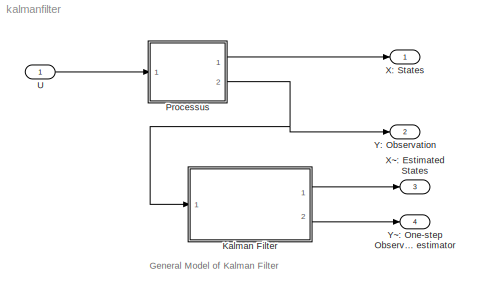
MODEL kalmanfilter
KIND model
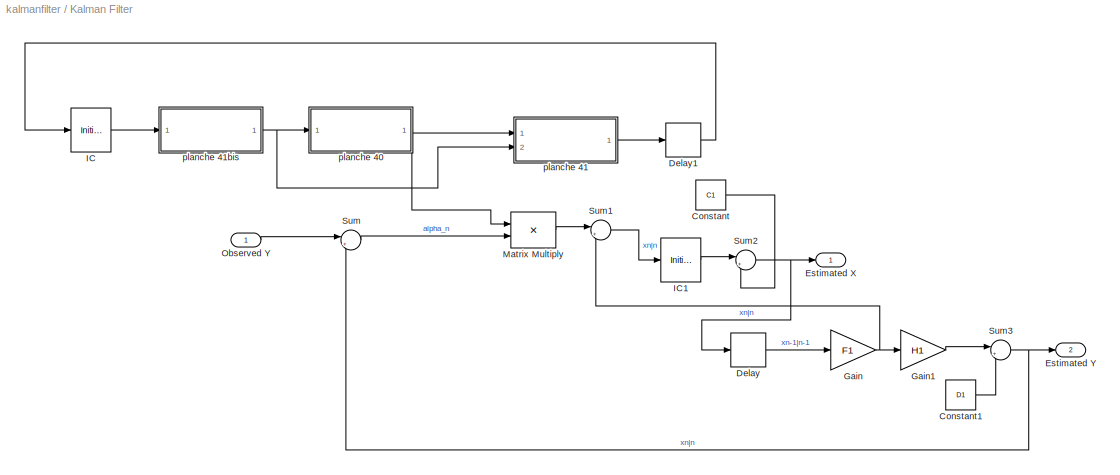
BLOCK [SubSystem] Kalman Filter
  Ports = [1, 2]
  RequestExecContextInheritance = off
  SID = 2
BLOCK [Constant] Kalman Filter/Constant
  SID = 187
  Value = C1
BLOCK [Constant] Kalman Filter/Constant1
  SID = 190
  Value = D1
BLOCK [Delay] Kalman Filter/Delay
  DelayLength = 1
  InitialCondition = 0
  InputPortMap = u0
  Ports = [1, 1]
  SID = 85
BLOCK [Delay] Kalman Filter/Delay1
  DelayLength = 1
  InitialCondition = 0
  InputPortMap = u0
  Ports = [1, 1]
  SID = 159
BLOCK [Outport] Kalman Filter/Estimated X
  SID = 28
BLOCK [Outport] Kalman Filter/Estimated Y
  Port = 2
  SID = 29
BLOCK [Gain] Kalman Filter/Gain
  Gain = F1
  Multiplication = Matrix(K*u)
  SID = 89
BLOCK [Gain] Kalman Filter/Gain1
  Gain = H1
  Multiplication = Matrix(K*u)
  SID = 157
BLOCK [InitialCondition] Kalman Filter/IC
  SID = 160
  Value = P1
BLOCK [InitialCondition] Kalman Filter/IC1
  SID = 170
  Value = x1
BLOCK [Product] Kalman Filter/Matrix Multiply
  Multiplication = Matrix(*)
  Ports = [2, 1]
  SID = 127
BLOCK [Inport] Kalman Filter/Observed Y
  PortDimensions = size(H,1)
  SID = 3
BLOCK [Sum] Kalman Filter/Sum
  Inputs = |+-
  Ports = [2, 1]
  SID = 83
BLOCK [Sum] Kalman Filter/Sum1
  Inputs = |++
  Ports = [2, 1]
  SID = 158
BLOCK [Sum] Kalman Filter/Sum2
  Inputs = |++
  Ports = [2, 1]
  SID = 188
BLOCK [Sum] Kalman Filter/Sum3
  Inputs = |++
  Ports = [2, 1]
  SID = 189
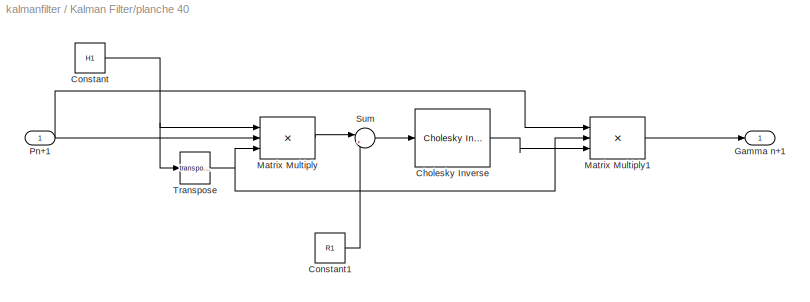
BLOCK [SubSystem] Kalman Filter/planche 40
  Ports = [1, 1]
  RequestExecContextInheritance = off
  SID = 90
BLOCK [Reference] Kalman Filter/planche 40/Cholesky Inverse  REF=dspinverses/Cholesky Inverse
  Ports = [1, 1]
  RTWMemSecDataConstants = Inherit from model
  RTWMemSecDataInternal = Inherit from model
  RTWMemSecDataParameters = Inherit from model
  RTWMemSecFuncExecute = Inherit from model
  RTWMemSecFuncInitTerm = Inherit from model
  SID = 181
  SourceBlock = dspinverses/Cholesky Inverse
  SourceProductBaseCode = DS
  SourceType = Cholesky Inverse
  errmode = Warning
BLOCK [Constant] Kalman Filter/planche 40/Constant
  SID = 97
  Value = H1
BLOCK [Constant] Kalman Filter/planche 40/Constant1
  SID = 98
  Value = R1
BLOCK [Outport] Kalman Filter/planche 40/Gamma n+1
  SID = 92
BLOCK [Product] Kalman Filter/planche 40/Matrix Multiply
  Inputs = 3
  Multiplication = Matrix(*)
  Ports = [3, 1]
  SID = 100
BLOCK [Product] Kalman Filter/planche 40/Matrix Multiply1
  Inputs = 3
  Multiplication = Matrix(*)
  Ports = [3, 1]
  SID = 102
BLOCK [Inport] Kalman Filter/planche 40/Pn+1
  SID = 91
BLOCK [Sum] Kalman Filter/planche 40/Sum
  Inputs = |++
  Ports = [2, 1]
  SID = 101
BLOCK [Math] Kalman Filter/planche 40/Transpose
  Operator = transpose
  Ports = [1, 1]
  SID = 99
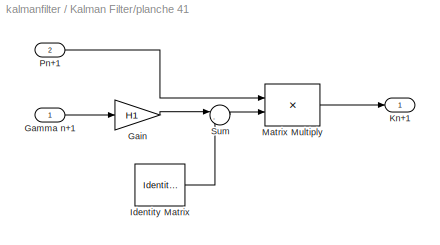
BLOCK [SubSystem] Kalman Filter/planche 41
  Ports = [2, 1]
  RequestExecContextInheritance = off
  SID = 103
BLOCK [Gain] Kalman Filter/planche 41/Gain
  Gain = H1
  Multiplication = Matrix(u*K)
  SID = 107
BLOCK [Inport] Kalman Filter/planche 41/Gamma n+1
  SID = 104
BLOCK [Reference] Kalman Filter/planche 41/Identity Matrix  REF=dspmtrx3/Identity Matrix
  Inherit = off
  LastOutDataTypeStr = double
  MultithreadedSim = auto
  N = 4
  OutDataTypeStr = double
  Ports = [0, 1]
  SID = 109
  SourceBlock = dspmtrx3/Identity Matrix
  SourceProductBaseCode = DS
  SourceType = Identity Matrix
  Ts = 1
  additionalParams = off
  allowOverrides = on
  dataType = double
  fracBitsMode = Best precision
  isSigned = on
  numFracBits = 15
  udDataType = sfix(16)
  wordLen = 16
BLOCK [Outport] Kalman Filter/planche 41/Kn+1
  SID = 105
BLOCK [Product] Kalman Filter/planche 41/Matrix Multiply
  Multiplication = Matrix(*)
  Ports = [2, 1]
  SID = 110
BLOCK [Inport] Kalman Filter/planche 41/Pn+1
  Port = 2
  SID = 106
BLOCK [Sum] Kalman Filter/planche 41/Sum
  Inputs = |-+
  Ports = [2, 1]
  SID = 108
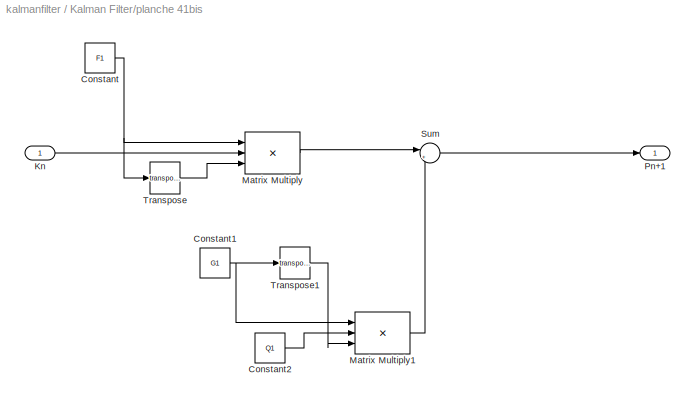
BLOCK [SubSystem] Kalman Filter/planche 41bis
  Ports = [1, 1]
  RequestExecContextInheritance = off
  SID = 111
BLOCK [Constant] Kalman Filter/planche 41bis/Constant
  SID = 114
  Value = F1
BLOCK [Constant] Kalman Filter/planche 41bis/Constant1
  SID = 115
  Value = G1
BLOCK [Constant] Kalman Filter/planche 41bis/Constant2
  SID = 121
  Value = Q1
BLOCK [Inport] Kalman Filter/planche 41bis/Kn
  SID = 112
BLOCK [Product] Kalman Filter/planche 41bis/Matrix Multiply
  Inputs = 3
  Multiplication = Matrix(*)
  Ports = [3, 1]
  SID = 123
BLOCK [Product] Kalman Filter/planche 41bis/Matrix Multiply1
  Inputs = 3
  Multiplication = Matrix(*)
  Ports = [3, 1]
  SID = 124
BLOCK [Outport] Kalman Filter/planche 41bis/Pn+1
  SID = 120
BLOCK [Sum] Kalman Filter/planche 41bis/Sum
  Inputs = |++
  Ports = [2, 1]
  SID = 125
BLOCK [Math] Kalman Filter/planche 41bis/Transpose
  Operator = transpose
  Ports = [1, 1]
  SID = 119
BLOCK [Math] Kalman Filter/planche 41bis/Transpose1
  Operator = transpose
  Ports = [1, 1]
  SID = 122
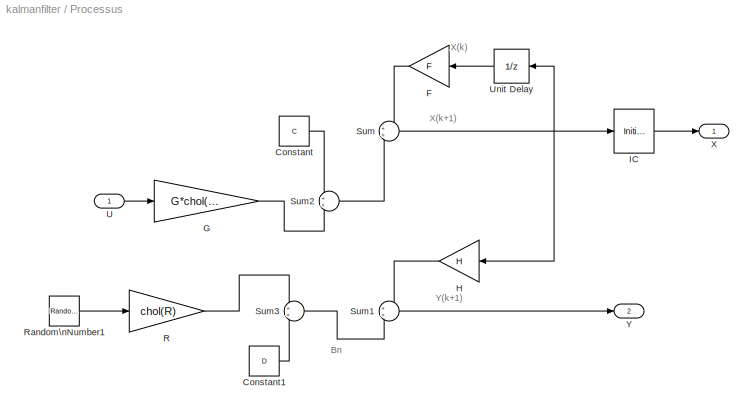
BLOCK [SubSystem] Processus 
  Ports = [1, 2]
  RequestExecContextInheritance = off
  SID = 36
BLOCK [Constant] Processus /Constant
  SID = 184
  Value = C
BLOCK [Constant] Processus /Constant1
  SID = 186
  Value = D
BLOCK [Gain] Processus /F
  Gain = F
  Multiplication = Matrix(K*u)
  SID = 38
BLOCK [Gain] Processus /G
  Gain = G*chol(Q)'
  Multiplication = Matrix(K*u)
  SID = 63
BLOCK [Gain] Processus /H
  Gain = H
  Multiplication = Matrix(K*u)
  SID = 40
BLOCK [InitialCondition] Processus /IC
  SID = 176
  Value = x0
BLOCK [Gain] Processus /R
  Gain = chol(R)
  Multiplication = Matrix(K*u)
  SID = 43
BLOCK [RandomNumber] Processus /Random\nNumber1
  Mean = zeros(size(R,1),1)
  SID = 45
  SampleTime = 1
  Variance = ones(size(R,1),1)
BLOCK [Sum] Processus /Sum
  Ports = [2, 1]
  SID = 46
BLOCK [Sum] Processus /Sum1
  Ports = [2, 1]
  SID = 47
BLOCK [Sum] Processus /Sum2
  Ports = [2, 1]
  SID = 182
BLOCK [Sum] Processus /Sum3
  Ports = [2, 1]
  SID = 185
BLOCK [Inport] Processus /U
  PortDimensions = size(G,2)
  SID = 65
BLOCK [UnitDelay] Processus /Unit Delay
  SID = 48
BLOCK [Outport] Processus /X
  SID = 49
BLOCK [Outport] Processus /Y
  Port = 2
  SID = 50
BLOCK [Inport] U
  PortDimensions = size(G,2)
  SID = 1
BLOCK [Outport] X: States
  SID = 56
BLOCK [Outport] X~: Estimated States
  Port = 3
  SID = 58
BLOCK [Outport] Y: Observation
  Port = 2
  SID = 57
BLOCK [Outport] Y~: One-step Observation estimator
  Port = 4
  SID = 59
ANNOTATION (root): General Model of Kalman Filter
ANNOTATION Processus : Bn
ANNOTATION Processus : X(k)
ANNOTATION Processus : X(k+1)
ANNOTATION Processus : Y(k+1)
LINE Kalman Filter/Constant1:1 -> Kalman Filter/Sum3:2
LINE Kalman Filter/Constant:1 -> Kalman Filter/Sum2:2
LINE Kalman Filter/Delay1:1 -> Kalman Filter/IC:1
LINE Kalman Filter/Delay:1 -> Kalman Filter/Gain:1
LINE Kalman Filter/Gain1:1 -> Kalman Filter/Sum3:1
NET Kalman Filter/Gain:1 -> Kalman Filter/Gain1:1, Kalman Filter/Sum1:2
LINE Kalman Filter/IC1:1 -> Kalman Filter/Sum2:1
LINE Kalman Filter/IC:1 -> Kalman Filter/planche 41bis:1
LINE Kalman Filter/Matrix Multiply:1 -> Kalman Filter/Sum1:1
LINE Kalman Filter/Observed Y:1 -> Kalman Filter/Sum:1
LINE Kalman Filter/Sum1:1 -> Kalman Filter/IC1:1
NET Kalman Filter/Sum2:1 -> Kalman Filter/Delay:1, Kalman Filter/Estimated X:1
NET Kalman Filter/Sum3:1 -> Kalman Filter/Estimated Y:1, Kalman Filter/Sum:2
LINE Kalman Filter/Sum:1 -> Kalman Filter/Matrix Multiply:2
LINE Kalman Filter/planche 40/Cholesky Inverse:1 -> Kalman Filter/planche 40/Matrix Multiply1:3
LINE Kalman Filter/planche 40/Constant1:1 -> Kalman Filter/planche 40/Sum:2
NET Kalman Filter/planche 40/Constant:1 -> Kalman Filter/planche 40/Matrix Multiply:1, Kalman Filter/planche 40/Transpose:1
LINE Kalman Filter/planche 40/Matrix Multiply1:1 -> Kalman Filter/planche 40/Gamma n+1:1
LINE Kalman Filter/planche 40/Matrix Multiply:1 -> Kalman Filter/planche 40/Sum:1
NET Kalman Filter/planche 40/Pn+1:1 -> Kalman Filter/planche 40/Matrix Multiply1:1, Kalman Filter/planche 40/Matrix Multiply:2
LINE Kalman Filter/planche 40/Sum:1 -> Kalman Filter/planche 40/Cholesky Inverse:1
NET Kalman Filter/planche 40/Transpose:1 -> Kalman Filter/planche 40/Matrix Multiply1:2, Kalman Filter/planche 40/Matrix Multiply:3
NET Kalman Filter/planche 40:1 -> Kalman Filter/Matrix Multiply:1, Kalman Filter/planche 41:1
LINE Kalman Filter/planche 41/Gain:1 -> Kalman Filter/planche 41/Sum:1
LINE Kalman Filter/planche 41/Gamma n+1:1 -> Kalman Filter/planche 41/Gain:1
LINE Kalman Filter/planche 41/Identity Matrix:1 -> Kalman Filter/planche 41/Sum:2
LINE Kalman Filter/planche 41/Matrix Multiply:1 -> Kalman Filter/planche 41/Kn+1:1
LINE Kalman Filter/planche 41/Pn+1:1 -> Kalman Filter/planche 41/Matrix Multiply:1
LINE Kalman Filter/planche 41/Sum:1 -> Kalman Filter/planche 41/Matrix Multiply:2
LINE Kalman Filter/planche 41:1 -> Kalman Filter/Delay1:1
NET Kalman Filter/planche 41bis/Constant1:1 -> Kalman Filter/planche 41bis/Matrix Multiply1:1, Kalman Filter/planche 41bis/Transpose1:1
LINE Kalman Filter/planche 41bis/Constant2:1 -> Kalman Filter/planche 41bis/Matrix Multiply1:2
NET Kalman Filter/planche 41bis/Constant:1 -> Kalman Filter/planche 41bis/Matrix Multiply:1, Kalman Filter/planche 41bis/Transpose:1
LINE Kalman Filter/planche 41bis/Kn:1 -> Kalman Filter/planche 41bis/Matrix Multiply:2
LINE Kalman Filter/planche 41bis/Matrix Multiply1:1 -> Kalman Filter/planche 41bis/Sum:2
LINE Kalman Filter/planche 41bis/Matrix Multiply:1 -> Kalman Filter/planche 41bis/Sum:1
LINE Kalman Filter/planche 41bis/Sum:1 -> Kalman Filter/planche 41bis/Pn+1:1
LINE Kalman Filter/planche 41bis/Transpose1:1 -> Kalman Filter/planche 41bis/Matrix Multiply1:3
LINE Kalman Filter/planche 41bis/Transpose:1 -> Kalman Filter/planche 41bis/Matrix Multiply:3
NET Kalman Filter/planche 41bis:1 -> Kalman Filter/planche 40:1, Kalman Filter/planche 41:2
LINE Kalman Filter:1 -> X~: Estimated States:1
LINE Kalman Filter:2 -> Y~: One-step Observation estimator:1
LINE Processus /Constant1:1 -> Processus /Sum3:2
LINE Processus /Constant:1 -> Processus /Sum2:1
LINE Processus /F:1 -> Processus /Sum:1
LINE Processus /G:1 -> Processus /Sum2:2
LINE Processus /H:1 -> Processus /Sum1:1
LINE Processus /IC:1 -> Processus /X:1
LINE Processus /R:1 -> Processus /Sum3:1
LINE Processus /Random\nNumber1:1 -> Processus /R:1
LINE Processus /Sum1:1 -> Processus /Y:1
LINE Processus /Sum2:1 -> Processus /Sum:2
LINE Processus /Sum3:1 -> Processus /Sum1:2
NET Processus /Sum:1 -> Processus /H:1, Processus /IC:1, Processus /Unit Delay:1
LINE Processus /U:1 -> Processus /G:1
LINE Processus /Unit Delay:1 -> Processus /F:1
LINE Processus :1 -> X: States:1
NET Processus :2 -> Kalman Filter:1, Y: Observation:1
LINE U:1 -> Processus :1
note: NET lines group one-source signal fan-out (src -> all destinations, sorted); 1:1 wires keep LINE
